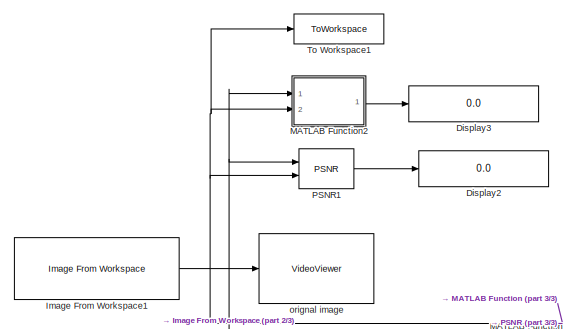
[diagram: root canvas - part 1/3, top left region]
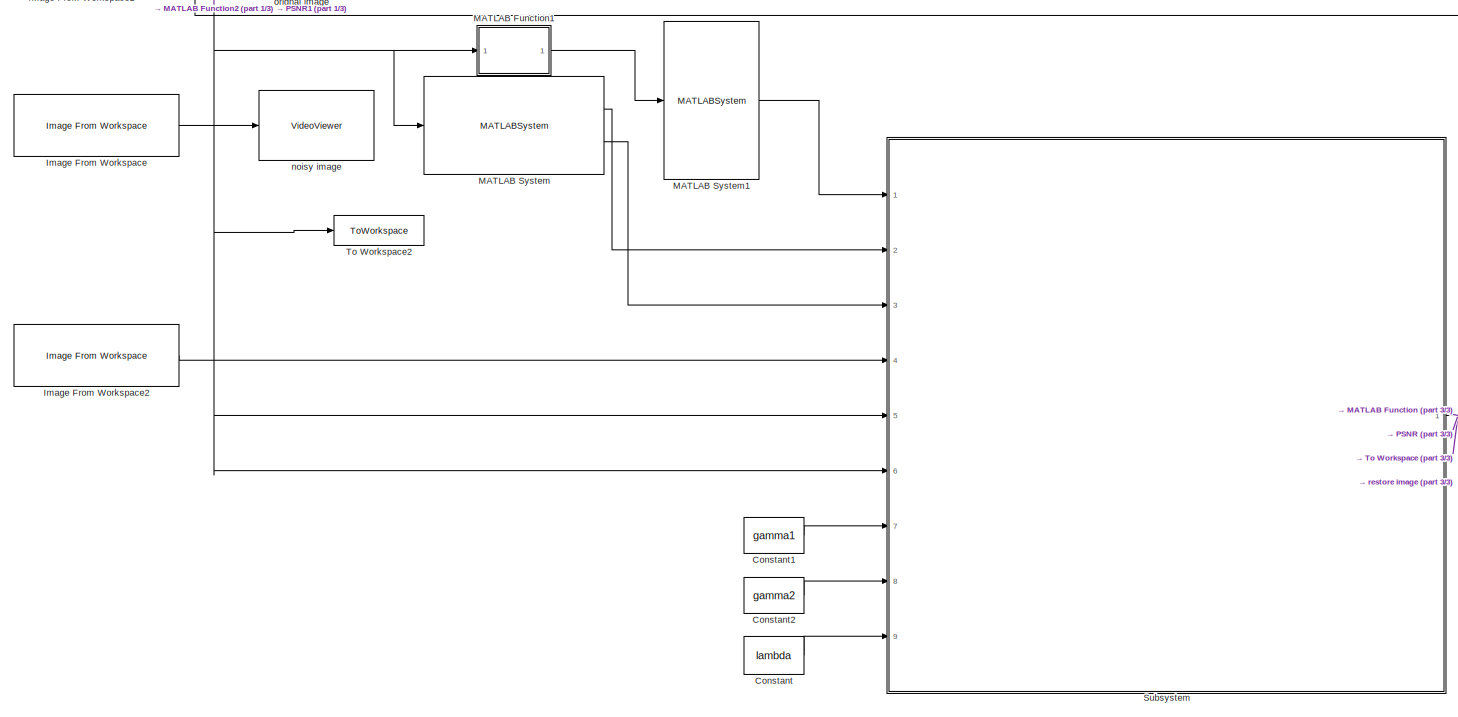
[diagram: root canvas - part 2/3, full width, middle band]
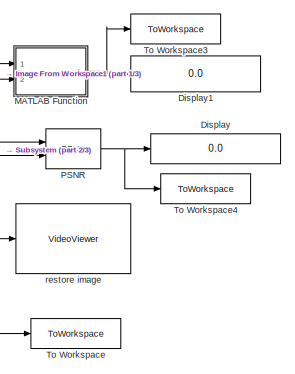
[diagram: root canvas - part 3/3, bottom right region]
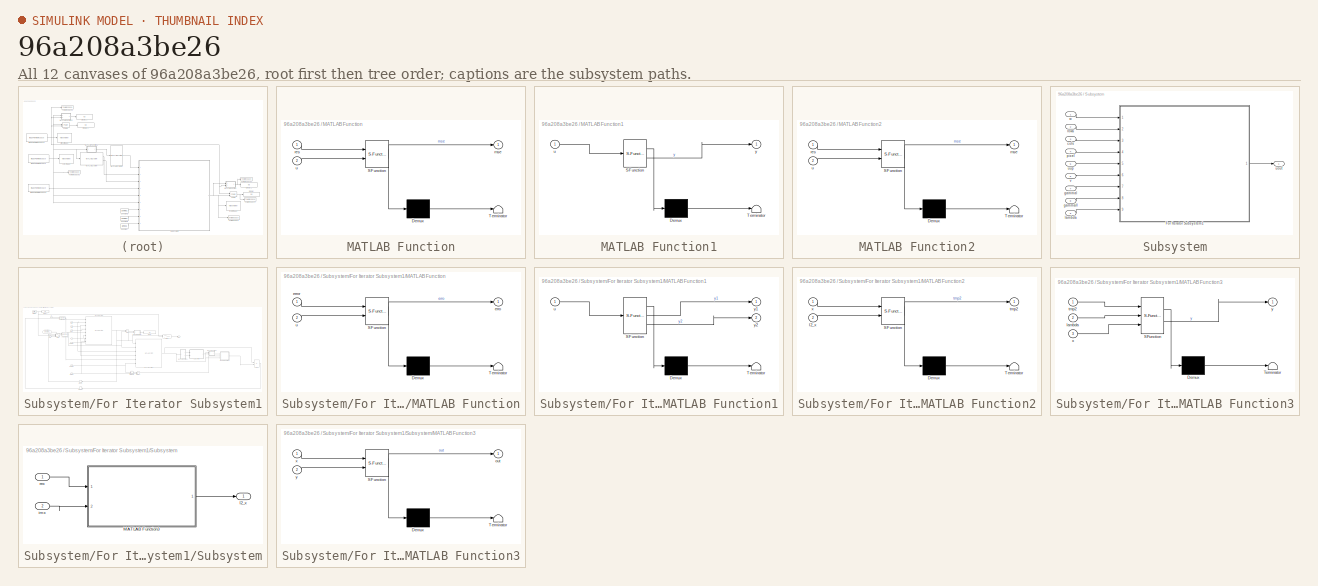
[diagram: thumbnail index - all 12 canvases of the model, root first then tree order]
MODEL slx_96a208a3be26
KIND model
CONFIG AbsTol = auto
CONFIG EnableMultiTasking = off
CONFIG FixedStep = auto
CONFIG MaxStep = auto
CONFIG MinStep = auto
CONFIG RelTol = 1e-3
CONFIG SampleTimeConstraint = Unconstrained
CONFIG SolverName = VariableStepAuto
CONFIG StartTime = 0.0
CONFIG StopTime = 0
BLOCK [Constant] Constant
  Value = lambda
BLOCK [Constant] Constant1
  Value = gamma1
BLOCK [Constant] Constant2
  Value = gamma2
BLOCK [Display] Display
  Decimation = 1
  Format = long
  Ports = [1]
BLOCK [Display] Display1
  Decimation = 1
  Format = long
  Ports = [1]
BLOCK [Display] Display2
  Decimation = 1
  Format = long
  Ports = [1]
BLOCK [Display] Display3
  Decimation = 1
  Format = long
  Ports = [1]
BLOCK [Reference] Image From Workspace  REF=visionsources/Image From Workspace
  Ports = [0, 1]
  SourceBlock = visionsources/Image From Workspace
  SourceProductBaseCode = VP
  SourceType = Image From Workspace
  Tag = vipblks_nd
BLOCK [Reference] Image From Workspace1  REF=visionsources/Image From Workspace
  Ports = [0, 1]
  SourceBlock = visionsources/Image From Workspace
  SourceProductBaseCode = VP
  SourceType = Image From Workspace
  Tag = vipblks_nd
BLOCK [Reference] Image From Workspace2  REF=visionsources/Image From Workspace
  Ports = [0, 1]
  SourceBlock = visionsources/Image From Workspace
  SourceProductBaseCode = VP
  SourceType = Image From Workspace
  Tag = vipblks_nd
BLOCK [SubSystem] MATLAB Function
  ErrorFcn = Stateflow.Translate.translate
  PermitHierarchicalResolution = ExplicitOnly
  Ports = [2, 1]
  RequestExecContextInheritance = off
  SFBlockType = MATLAB Function
  TreatAsAtomicUnit = on
BLOCK [Demux] MATLAB Function/ Demux 
  Outputs = 1
  Ports = [1, 1]
BLOCK [S-Function] MATLAB Function/ SFunction 
  EnableBusSupport = on
  FunctionName = sf_sfun
  PortCounts = [2 2]
  Ports = [2, 2]
  SFcnIsStateOwnerBlock = off
  SFunctionDeploymentMode = off
  Tag = Stateflow S-Function 5
BLOCK [Terminator] MATLAB Function/ Terminator 
BLOCK [Outport] MATLAB Function/mse
BLOCK [Inport] MATLAB Function/res
BLOCK [Inport] MATLAB Function/u
  Port = 2
BLOCK [SubSystem] MATLAB Function1
  ErrorFcn = Stateflow.Translate.translate
  PermitHierarchicalResolution = ExplicitOnly
  Ports = [1, 1]
  RequestExecContextInheritance = off
  SFBlockType = MATLAB Function
  TreatAsAtomicUnit = on
BLOCK [Demux] MATLAB Function1/ Demux 
  Outputs = 1
  Ports = [1, 1]
BLOCK [S-Function] MATLAB Function1/ SFunction 
  EnableBusSupport = on
  FunctionName = sf_sfun
  PortCounts = [1 2]
  Ports = [1, 2]
  SFcnIsStateOwnerBlock = off
  SFunctionDeploymentMode = off
  Tag = Stateflow S-Function 1
BLOCK [Terminator] MATLAB Function1/ Terminator 
BLOCK [Inport] MATLAB Function1/u
BLOCK [Outport] MATLAB Function1/y
BLOCK [SubSystem] MATLAB Function2
  ErrorFcn = Stateflow.Translate.translate
  PermitHierarchicalResolution = ExplicitOnly
  Ports = [2, 1]
  RequestExecContextInheritance = off
  SFBlockType = MATLAB Function
  TreatAsAtomicUnit = on
BLOCK [Demux] MATLAB Function2/ Demux 
  Outputs = 1
  Ports = [1, 1]
BLOCK [S-Function] MATLAB Function2/ SFunction 
  EnableBusSupport = on
  FunctionName = sf_sfun
  PortCounts = [2 2]
  Ports = [2, 2]
  SFcnIsStateOwnerBlock = off
  SFunctionDeploymentMode = off
  Tag = Stateflow S-Function 9
BLOCK [Terminator] MATLAB Function2/ Terminator 
BLOCK [Outport] MATLAB Function2/mse
BLOCK [Inport] MATLAB Function2/res
BLOCK [Inport] MATLAB Function2/u
  Port = 2
BLOCK [MATLABSystem] MATLAB System
  MaskDisplay = disp('regObsevationSystem');\nport_label('input',1,'imnoisy');\nport_label('output',1,'rows');\nport_label('output',2,'colw');
  MaskType = regObsevationSystem
  Ports = [1, 2]
  SimulateUsing = Code generation
  System = regObsevationSystem
BLOCK [MATLABSystem] MATLAB System1
  MaskDisplay = disp('D');\nport_label('input',1,'z');\nport_label('output',1,'w');
  MaskType = dBlockSystem
  Ports = [1, 1]
  SimulateUsing = Code generation
  System = dBlockSystem
BLOCK [Reference] PSNR  REF=visionstatistics/PSNR
  Ports = [2, 1]
  SourceBlock = visionstatistics/PSNR
  SourceProductBaseCode = VP
  SourceType = PSNR
BLOCK [Reference] PSNR1  REF=visionstatistics/PSNR
  Ports = [2, 1]
  SourceBlock = visionstatistics/PSNR
  SourceProductBaseCode = VP
  SourceType = PSNR
BLOCK [SubSystem] Subsystem
  Ports = [9, 1]
  RequestExecContextInheritance = off
  TreatAsAtomicUnit = on
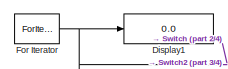
[diagram: Subsystem/For Iterator Subsystem1 - part 1/4, top left region]
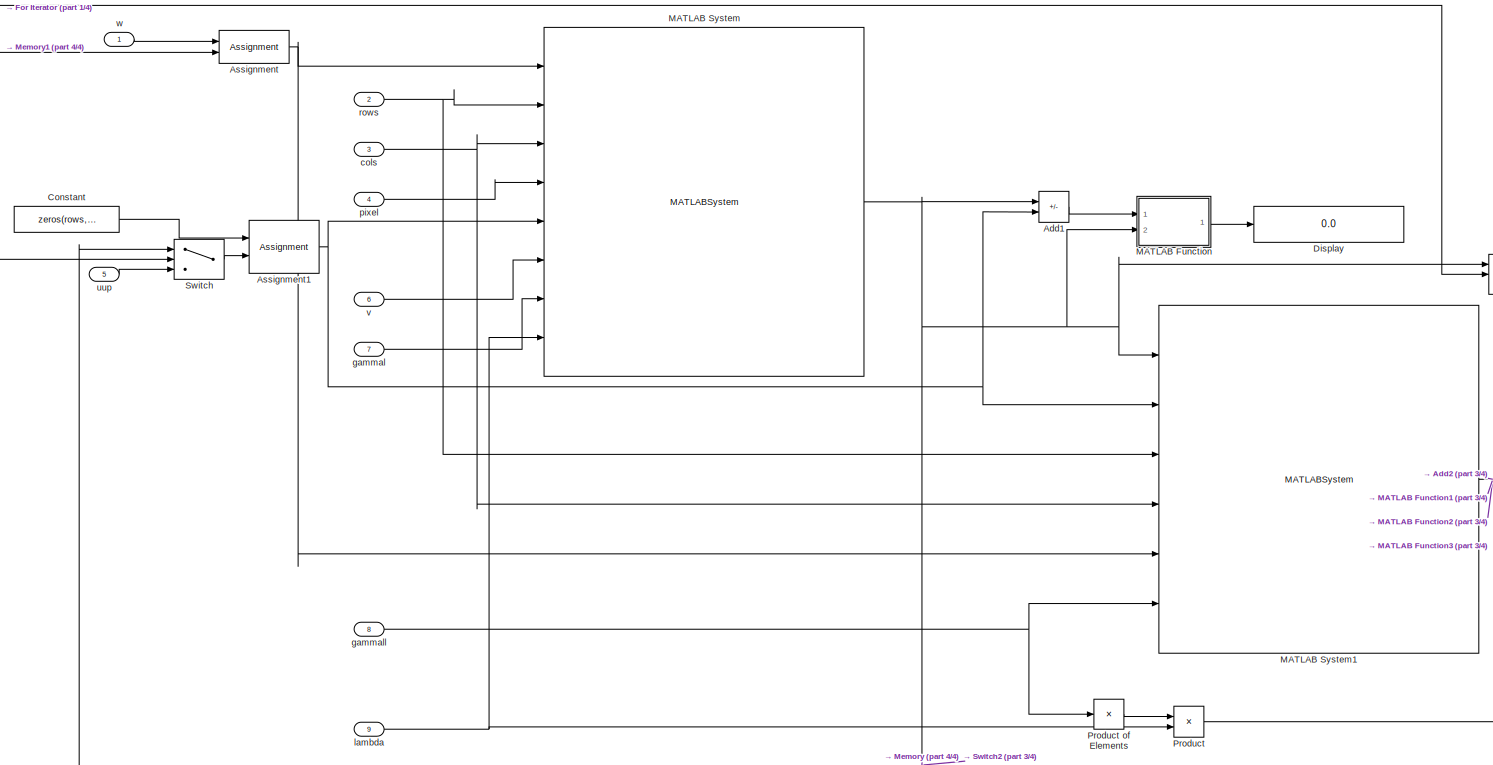
[diagram: Subsystem/For Iterator Subsystem1 - part 2/4, left side, full height]
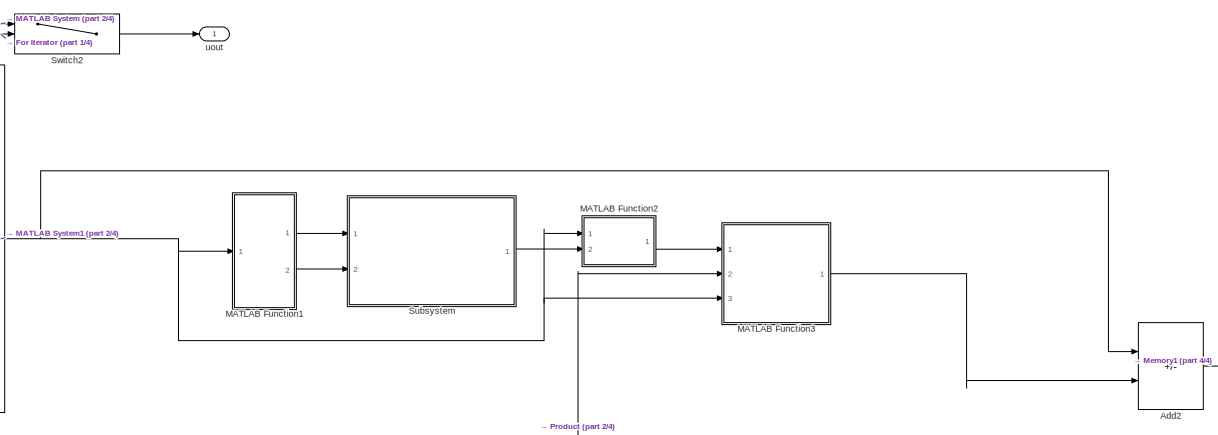
[diagram: Subsystem/For Iterator Subsystem1 - part 3/4, middle right region]
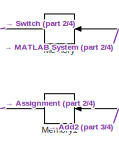
[diagram: Subsystem/For Iterator Subsystem1 - part 4/4, bottom left region]
BLOCK [SubSystem] Subsystem/For Iterator Subsystem1
  Ports = [9, 1]
  RequestExecContextInheritance = off
  TreatAsAtomicUnit = on
BLOCK [Sum] Subsystem/For Iterator Subsystem1/Add1
  IconShape = rectangular
  Inputs = +-
  Ports = [2, 1]
BLOCK [Sum] Subsystem/For Iterator Subsystem1/Add2
  IconShape = rectangular
  Inputs = +-
  Ports = [2, 1]
BLOCK [Assignment] Subsystem/For Iterator Subsystem1/Assignment
  DiagnosticForDimensions = Warning
  IndexOptions = Assign all,Assign all,Assign all
  Indices = 1,1,1
  NumberOfDimensions = 3
  OutputSizes = 1,1,1
  Ports = [2, 1]
BLOCK [Assignment] Subsystem/For Iterator Subsystem1/Assignment1
  DiagnosticForDimensions = Warning
  IndexOptions = Assign all,Assign all
  Indices = 1,1
  NumberOfDimensions = 2
  OutputSizes = 1,1
  Ports = [2, 1]
BLOCK [Constant] Subsystem/For Iterator Subsystem1/Constant
  Value = zeros(rows,cols)
BLOCK [Display] Subsystem/For Iterator Subsystem1/Display
  Decimation = 1
  Ports = [1]
BLOCK [Display] Subsystem/For Iterator Subsystem1/Display1
  Decimation = 1
  Ports = [1]
BLOCK [ForIterator] Subsystem/For Iterator Subsystem1/For Iterator
  IndexMode = Zero-based
  IterationLimit = maxIter
  IterationVariableDataType = double
  Ports = [0, 1]
BLOCK [SubSystem] Subsystem/For Iterator Subsystem1/MATLAB Function
  ErrorFcn = Stateflow.Translate.translate
  PermitHierarchicalResolution = ExplicitOnly
  Ports = [2, 1]
  RequestExecContextInheritance = off
  SFBlockType = MATLAB Function
  TreatAsAtomicUnit = on
BLOCK [Demux] Subsystem/For Iterator Subsystem1/MATLAB Function/ Demux 
  Outputs = 1
  Ports = [1, 1]
BLOCK [S-Function] Subsystem/For Iterator Subsystem1/MATLAB Function/ SFunction 
  EnableBusSupport = on
  FunctionName = sf_sfun
  PortCounts = [2 2]
  Ports = [2, 2]
  SFcnIsStateOwnerBlock = off
  SFunctionDeploymentMode = off
  Tag = Stateflow S-Function 8
BLOCK [Terminator] Subsystem/For Iterator Subsystem1/MATLAB Function/ Terminator 
BLOCK [Outport] Subsystem/For Iterator Subsystem1/MATLAB Function/erro
BLOCK [Inport] Subsystem/For Iterator Subsystem1/MATLAB Function/error
BLOCK [Inport] Subsystem/For Iterator Subsystem1/MATLAB Function/u
  Port = 2
BLOCK [SubSystem] Subsystem/For Iterator Subsystem1/MATLAB Function1
  ErrorFcn = Stateflow.Translate.translate
  PermitHierarchicalResolution = ExplicitOnly
  Ports = [1, 2]
  RequestExecContextInheritance = off
  SFBlockType = MATLAB Function
  TreatAsAtomicUnit = on
BLOCK [Demux] Subsystem/For Iterator Subsystem1/MATLAB Function1/ Demux 
  Outputs = 1
  Ports = [1, 1]
BLOCK [S-Function] Subsystem/For Iterator Subsystem1/MATLAB Function1/ SFunction 
  EnableBusSupport = on
  FunctionName = sf_sfun
  PortCounts = [1 3]
  Ports = [1, 3]
  SFcnIsStateOwnerBlock = off
  SFunctionDeploymentMode = off
  Tag = Stateflow S-Function 10
BLOCK [Terminator] Subsystem/For Iterator Subsystem1/MATLAB Function1/ Terminator 
BLOCK [Inport] Subsystem/For Iterator Subsystem1/MATLAB Function1/u
BLOCK [Outport] Subsystem/For Iterator Subsystem1/MATLAB Function1/y1
BLOCK [Outport] Subsystem/For Iterator Subsystem1/MATLAB Function1/y2
  Port = 2
BLOCK [SubSystem] Subsystem/For Iterator Subsystem1/MATLAB Function2
  ErrorFcn = Stateflow.Translate.translate
  PermitHierarchicalResolution = ExplicitOnly
  Ports = [2, 1]
  RequestExecContextInheritance = off
  SFBlockType = MATLAB Function
  TreatAsAtomicUnit = on
BLOCK [Demux] Subsystem/For Iterator Subsystem1/MATLAB Function2/ Demux 
  Outputs = 1
  Ports = [1, 1]
BLOCK [S-Function] Subsystem/For Iterator Subsystem1/MATLAB Function2/ SFunction 
  EnableBusSupport = on
  FunctionName = sf_sfun
  PortCounts = [2 2]
  Ports = [2, 2]
  SFcnIsStateOwnerBlock = off
  SFunctionDeploymentMode = off
  Tag = Stateflow S-Function 11
BLOCK [Terminator] Subsystem/For Iterator Subsystem1/MATLAB Function2/ Terminator 
BLOCK [Inport] Subsystem/For Iterator Subsystem1/MATLAB Function2/l2_x
  Port = 2
BLOCK [Outport] Subsystem/For Iterator Subsystem1/MATLAB Function2/tmp2
BLOCK [Inport] Subsystem/For Iterator Subsystem1/MATLAB Function2/x
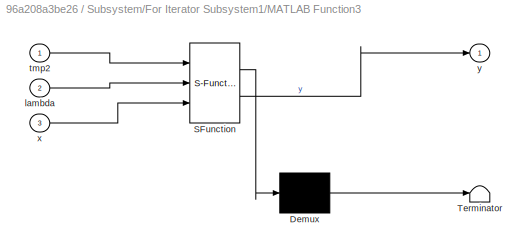
BLOCK [SubSystem] Subsystem/For Iterator Subsystem1/MATLAB Function3
  ErrorFcn = Stateflow.Translate.translate
  PermitHierarchicalResolution = ExplicitOnly
  Ports = [3, 1]
  RequestExecContextInheritance = off
  SFBlockType = MATLAB Function
  TreatAsAtomicUnit = on
BLOCK [Demux] Subsystem/For Iterator Subsystem1/MATLAB Function3/ Demux 
  Outputs = 1
  Ports = [1, 1]
BLOCK [S-Function] Subsystem/For Iterator Subsystem1/MATLAB Function3/ SFunction 
  EnableBusSupport = on
  FunctionName = sf_sfun
  PortCounts = [3 2]
  Ports = [3, 2]
  SFcnIsStateOwnerBlock = off
  SFunctionDeploymentMode = off
  Tag = Stateflow S-Function 12
BLOCK [Terminator] Subsystem/For Iterator Subsystem1/MATLAB Function3/ Terminator 
BLOCK [Inport] Subsystem/For Iterator Subsystem1/MATLAB Function3/lambda
  Port = 2
BLOCK [Inport] Subsystem/For Iterator Subsystem1/MATLAB Function3/tmp2
BLOCK [Inport] Subsystem/For Iterator Subsystem1/MATLAB Function3/x
  Port = 3
BLOCK [Outport] Subsystem/For Iterator Subsystem1/MATLAB Function3/y
BLOCK [MATLABSystem] Subsystem/For Iterator Subsystem1/MATLAB System
  MaskDisplay = disp('updateuSystem');\nport_label('input',1,'w');\nport_label('input',2,'rows');\nport_label('input',3,'cols');\nport_label('input',4,'pixel');\nport_label('input',5,'uup');\nport_label('input',6,'v');\nport_label('input',7,'gamma1');\nport_label('input',8,'lambda');\nport_label('output',1,'u');
  MaskType = updateuSystem
  Ports = [8, 1]
  SimulateUsing = Code generation
  System = updateuSystem
BLOCK [MATLABSystem] Subsystem/For Iterator Subsystem1/MATLAB System1
  MaskDisplay = disp('updatewSystem');\nport_label('input',1,'u');\nport_label('input',2,'upre');\nport_label('input',3,'rows');\nport_label('input',4,'cols');\nport_label('input',5,'w');\nport_label('input',6,'gamma2');\nport_label('output',1,'w_tilde');
  MaskType = updatewSystem
  Ports = [6, 1]
  SimulateUsing = Code generation
  System = updatewSystem
BLOCK [Memory] Subsystem/For Iterator Subsystem1/Memory
  InheritSampleTime = on
BLOCK [Memory] Subsystem/For Iterator Subsystem1/Memory1
  InheritSampleTime = on
BLOCK [Product] Subsystem/For Iterator Subsystem1/Product
  Ports = [2, 1]
BLOCK [Product] Subsystem/For Iterator Subsystem1/Product of Elements
  Inputs = /
  Ports = [1, 1]
BLOCK [SubSystem] Subsystem/For Iterator Subsystem1/Subsystem
  Ports = [2, 1]
  RequestExecContextInheritance = off
BLOCK [SubSystem] Subsystem/For Iterator Subsystem1/Subsystem/MATLAB Function3
  ErrorFcn = Stateflow.Translate.translate
  PermitHierarchicalResolution = ExplicitOnly
  Ports = [2, 1]
  RequestExecContextInheritance = off
  SFBlockType = MATLAB Function
  TreatAsAtomicUnit = on
BLOCK [Demux] Subsystem/For Iterator Subsystem1/Subsystem/MATLAB Function3/ Demux 
  Outputs = 1
  Ports = [1, 1]
BLOCK [S-Function] Subsystem/For Iterator Subsystem1/Subsystem/MATLAB Function3/ SFunction 
  EnableBusSupport = on
  FunctionName = sf_sfun
  PortCounts = [2 2]
  Ports = [2, 2]
  SFcnIsStateOwnerBlock = off
  SFunctionDeploymentMode = off
  Tag = Stateflow S-Function 13
BLOCK [Terminator] Subsystem/For Iterator Subsystem1/Subsystem/MATLAB Function3/ Terminator 
BLOCK [Outport] Subsystem/For Iterator Subsystem1/Subsystem/MATLAB Function3/out
BLOCK [Inport] Subsystem/For Iterator Subsystem1/Subsystem/MATLAB Function3/x
BLOCK [Inport] Subsystem/For Iterator Subsystem1/Subsystem/MATLAB Function3/y
  Port = 2
BLOCK [Inport] Subsystem/For Iterator Subsystem1/Subsystem/imx
  Port = 2
BLOCK [Outport] Subsystem/For Iterator Subsystem1/Subsystem/l2_x
BLOCK [Inport] Subsystem/For Iterator Subsystem1/Subsystem/rex
BLOCK [Switch] Subsystem/For Iterator Subsystem1/Switch
  Criteria = u2 > Threshold
  InputSameDT = off
  SaturateOnIntegerOverflow = off
BLOCK [Switch] Subsystem/For Iterator Subsystem1/Switch2
  InputSameDT = off
  SaturateOnIntegerOverflow = off
  Threshold = maxIter-1
BLOCK [Inport] Subsystem/For Iterator Subsystem1/cols
  Port = 3
BLOCK [Inport] Subsystem/For Iterator Subsystem1/gammal
  Port = 7
BLOCK [Inport] Subsystem/For Iterator Subsystem1/gammall
  Port = 8
BLOCK [Inport] Subsystem/For Iterator Subsystem1/lambda
  Port = 9
BLOCK [Inport] Subsystem/For Iterator Subsystem1/pixel
  Port = 4
BLOCK [Inport] Subsystem/For Iterator Subsystem1/rows
  Port = 2
BLOCK [Outport] Subsystem/For Iterator Subsystem1/uout
BLOCK [Inport] Subsystem/For Iterator Subsystem1/uup
  Port = 5
BLOCK [Inport] Subsystem/For Iterator Subsystem1/v
  Port = 6
BLOCK [Inport] Subsystem/For Iterator Subsystem1/w
BLOCK [Inport] Subsystem/cols
  Port = 3
BLOCK [Inport] Subsystem/gammal
  Port = 7
BLOCK [Inport] Subsystem/gammall
  Port = 8
BLOCK [Inport] Subsystem/lambda
  Port = 9
BLOCK [Inport] Subsystem/pixel
  Port = 4
BLOCK [Inport] Subsystem/rows
  Port = 2
BLOCK [Outport] Subsystem/uout
BLOCK [Inport] Subsystem/uup
  Port = 5
BLOCK [Inport] Subsystem/v
  Port = 6
BLOCK [Inport] Subsystem/w
BLOCK [ToWorkspace] To Workspace
  FixptAsFi = on
  MaxDataPoints = inf
  Ports = [1]
  SampleTime = -1
  Save2DSignal = 2-D array (concatenate along first dimension)
  SaveFormat = Structure
  VariableName = tv_restored_sq
BLOCK [ToWorkspace] To Workspace1
  FixptAsFi = on
  MaxDataPoints = inf
  Ports = [1]
  SampleTime = -1
  Save2DSignal = 2-D array (concatenate along first dimension)
  SaveFormat = Structure
  VariableName = orgImg
BLOCK [ToWorkspace] To Workspace2
  FixptAsFi = on
  MaxDataPoints = inf
  Ports = [1]
  SampleTime = -1
  Save2DSignal = 2-D array (concatenate along first dimension)
  SaveFormat = Structure
  VariableName = noisy
BLOCK [ToWorkspace] To Workspace3
  FixptAsFi = on
  MaxDataPoints = inf
  Ports = [1]
  SampleTime = -1
  Save2DSignal = 2-D array (concatenate along first dimension)
  SaveFormat = Structure
  VariableName = mse
BLOCK [ToWorkspace] To Workspace4
  FixptAsFi = on
  MaxDataPoints = inf
  Ports = [1]
  SampleTime = -1
  Save2DSignal = 2-D array (concatenate along first dimension)
  SaveFormat = Structure
  VariableName = PSNR
BLOCK [VideoViewer] noisy image
  Commented = on
  FigPos = [349 887 308 381]
  Ports = [1]
  ScopeSpecificationString = vipscopes.VideoViewerScopeCfg('CurrentConfiguration', extmgr.ConfigurationSet(extmgr.Configuration('Core','General UI',true),extmgr.Configuration('Core','Source UI',true),extmgr.Configuration('Sources','WiredSimulink',true),extmgr.Configuration('Visuals','Video',true),extmgr.Configuration('Tools','Image Navigation Tools',true),extmgr.Configuration('Tools','Image Tool',true),extmgr.Configuration('T...<+101ch>
BLOCK [VideoViewer] orignal image
  Commented = on
  FigPos = [248 697 520 310]
  Ports = [1]
  ScopeSpecificationString = vipscopes.VideoViewerScopeCfg('CurrentConfiguration', extmgr.ConfigurationSet(extmgr.Configuration('Core','General UI',true),extmgr.Configuration('Core','Source UI',true),extmgr.Configuration('Sources','WiredSimulink',true),extmgr.Configuration('Visuals','Video',true),extmgr.Configuration('Tools','Image Navigation Tools',true),extmgr.Configuration('Tools','Image Tool',true),extmgr.Configuration('T...<+101ch>
BLOCK [VideoViewer] restore image
  Commented = on
  FigPos = [19 892 539 328]
  Ports = [1]
  ScopeSpecificationString = vipscopes.VideoViewerScopeCfg('CurrentConfiguration', extmgr.ConfigurationSet(extmgr.Configuration('Core','General UI',true),extmgr.Configuration('Core','Source UI',true),extmgr.Configuration('Sources','WiredSimulink',true),extmgr.Configuration('Visuals','Video',true),extmgr.Configuration('Tools','Image Navigation Tools',true),extmgr.Configuration('Tools','Image Tool',true),extmgr.Configuration('T...<+100ch>
LINE Constant1:1 -> Subsystem:7
LINE Constant2:1 -> Subsystem:8
LINE Constant:1 -> Subsystem:9
NET Image From Workspace1:1 -> MATLAB Function2:2, MATLAB Function:2, PSNR1:2, PSNR:1, To Workspace1:1, orignal image:1
LINE Image From Workspace2:1 -> Subsystem:4
NET Image From Workspace:1 -> MATLAB Function1:1, MATLAB Function2:1, MATLAB System:1, PSNR1:1, Subsystem:5, Subsystem:6, To Workspace2:1, noisy image:1
LINE MATLAB Function1:1 -> MATLAB System1:1
LINE MATLAB Function2:1 -> Display3:1
NET MATLAB Function:1 -> Display1:1, To Workspace3:1
LINE MATLAB System1:1 -> Subsystem:1
LINE MATLAB System:1 -> Subsystem:2
LINE MATLAB System:2 -> Subsystem:3
LINE PSNR1:1 -> Display2:1
NET PSNR:1 -> Display:1, To Workspace4:1
LINE Subsystem/For Iterator Subsystem1/Add1:1 -> Subsystem/For Iterator Subsystem1/MATLAB Function:1
LINE Subsystem/For Iterator Subsystem1/Add2:1 -> Subsystem/For Iterator Subsystem1/Memory1:1
NET Subsystem/For Iterator Subsystem1/Assignment1:1 -> Subsystem/For Iterator Subsystem1/Add1:2, Subsystem/For Iterator Subsystem1/MATLAB System1:2, Subsystem/For Iterator Subsystem1/MATLAB System:5
NET Subsystem/For Iterator Subsystem1/Assignment:1 -> Subsystem/For Iterator Subsystem1/MATLAB System1:5, Subsystem/For Iterator Subsystem1/MATLAB System:1
LINE Subsystem/For Iterator Subsystem1/Constant:1 -> Subsystem/For Iterator Subsystem1/Assignment1:1
NET Subsystem/For Iterator Subsystem1/For Iterator:1 -> Subsystem/For Iterator Subsystem1/Display1:1, Subsystem/For Iterator Subsystem1/Switch2:2, Subsystem/For Iterator Subsystem1/Switch:2
LINE Subsystem/For Iterator Subsystem1/MATLAB Function1:1 -> Subsystem/For Iterator Subsystem1/Subsystem:1
LINE Subsystem/For Iterator Subsystem1/MATLAB Function1:2 -> Subsystem/For Iterator Subsystem1/Subsystem:2
LINE Subsystem/For Iterator Subsystem1/MATLAB Function2:1 -> Subsystem/For Iterator Subsystem1/MATLAB Function3:1
LINE Subsystem/For Iterator Subsystem1/MATLAB Function3:1 -> Subsystem/For Iterator Subsystem1/Add2:2
LINE Subsystem/For Iterator Subsystem1/MATLAB Function:1 -> Subsystem/For Iterator Subsystem1/Display:1
NET Subsystem/For Iterator Subsystem1/MATLAB System1:1 -> Subsystem/For Iterator Subsystem1/Add2:1, Subsystem/For Iterator Subsystem1/MATLAB Function1:1, Subsystem/For Iterator Subsystem1/MATLAB Function2:1, Subsystem/For Iterator Subsystem1/MATLAB Function3:3
NET Subsystem/For Iterator Subsystem1/MATLAB System:1 -> Subsystem/For Iterator Subsystem1/Add1:1, Subsystem/For Iterator Subsystem1/MATLAB Function:2, Subsystem/For Iterator Subsystem1/MATLAB System1:1, Subsystem/For Iterator Subsystem1/Memory:1, Subsystem/For Iterator Subsystem1/Switch2:1
LINE Subsystem/For Iterator Subsystem1/Memory1:1 -> Subsystem/For Iterator Subsystem1/Assignment:2
LINE Subsystem/For Iterator Subsystem1/Memory:1 -> Subsystem/For Iterator Subsystem1/Switch:1
LINE Subsystem/For Iterator Subsystem1/Product of Elements:1 -> Subsystem/For Iterator Subsystem1/Product:1
LINE Subsystem/For Iterator Subsystem1/Product:1 -> Subsystem/For Iterator Subsystem1/MATLAB Function3:2
LINE Subsystem/For Iterator Subsystem1/Subsystem/MATLAB Function3:1 -> Subsystem/For Iterator Subsystem1/Subsystem/l2_x:1
LINE Subsystem/For Iterator Subsystem1/Subsystem/imx:1 -> Subsystem/For Iterator Subsystem1/Subsystem/MATLAB Function3:2
LINE Subsystem/For Iterator Subsystem1/Subsystem/rex:1 -> Subsystem/For Iterator Subsystem1/Subsystem/MATLAB Function3:1
LINE Subsystem/For Iterator Subsystem1/Subsystem:1 -> Subsystem/For Iterator Subsystem1/MATLAB Function2:2
LINE Subsystem/For Iterator Subsystem1/Switch2:1 -> Subsystem/For Iterator Subsystem1/uout:1
LINE Subsystem/For Iterator Subsystem1/Switch:1 -> Subsystem/For Iterator Subsystem1/Assignment1:2
NET Subsystem/For Iterator Subsystem1/cols:1 -> Subsystem/For Iterator Subsystem1/MATLAB System1:4, Subsystem/For Iterator Subsystem1/MATLAB System:3
LINE Subsystem/For Iterator Subsystem1/gammal:1 -> Subsystem/For Iterator Subsystem1/MATLAB System:7
NET Subsystem/For Iterator Subsystem1/gammall:1 -> Subsystem/For Iterator Subsystem1/MATLAB System1:6, Subsystem/For Iterator Subsystem1/Product of Elements:1
NET Subsystem/For Iterator Subsystem1/lambda:1 -> Subsystem/For Iterator Subsystem1/MATLAB System:8, Subsystem/For Iterator Subsystem1/Product:2
LINE Subsystem/For Iterator Subsystem1/pixel:1 -> Subsystem/For Iterator Subsystem1/MATLAB System:4
NET Subsystem/For Iterator Subsystem1/rows:1 -> Subsystem/For Iterator Subsystem1/MATLAB System1:3, Subsystem/For Iterator Subsystem1/MATLAB System:2
LINE Subsystem/For Iterator Subsystem1/uup:1 -> Subsystem/For Iterator Subsystem1/Switch:3
LINE Subsystem/For Iterator Subsystem1/v:1 -> Subsystem/For Iterator Subsystem1/MATLAB System:6
LINE Subsystem/For Iterator Subsystem1/w:1 -> Subsystem/For Iterator Subsystem1/Assignment:1
LINE Subsystem/For Iterator Subsystem1:1 -> Subsystem/uout:1
LINE Subsystem/cols:1 -> Subsystem/For Iterator Subsystem1:3
LINE Subsystem/gammal:1 -> Subsystem/For Iterator Subsystem1:7
LINE Subsystem/gammall:1 -> Subsystem/For Iterator Subsystem1:8
LINE Subsystem/lambda:1 -> Subsystem/For Iterator Subsystem1:9
LINE Subsystem/pixel:1 -> Subsystem/For Iterator Subsystem1:4
LINE Subsystem/rows:1 -> Subsystem/For Iterator Subsystem1:2
LINE Subsystem/uup:1 -> Subsystem/For Iterator Subsystem1:5
LINE Subsystem/v:1 -> Subsystem/For Iterator Subsystem1:6
LINE Subsystem/w:1 -> Subsystem/For Iterator Subsystem1:1
NET Subsystem:1 -> MATLAB Function:1, PSNR:2, To Workspace:1, restore image:1
note: NET lines group one-source signal fan-out (src -> all destinations, sorted); 1:1 wires keep LINE
CHART MATLAB Function states=1 transitions=1
  STATE_LABEL 'eML_blk_kernel()'
  STATE_LABEL 'SCRIPT:\nfunction mse = fcn(res,u)\n\nmse = immse(u,res);\n'
CHART Subsystem/For Iterator
Subsystem1/MATLAB Function states=1 transitions=1
  STATE_LABEL 'eML_blk_kernel()'
  STATE_LABEL 'SCRIPT:\nfunction erro = fcn(error,u)\n\nerro = norm(error(:),2) / norm(u(:),2);\n'
CHART MATLAB Function2 states=1 transitions=1
  STATE_LABEL 'eML_blk_kernel()'
  STATE_LABEL 'SCRIPT:\nfunction mse = fcn(res,u)\n\nmse = immse(u,res);\n'
CHART Subsystem/For Iterator
Subsystem1/MATLAB Function1 states=1 transitions=1
  STATE_LABEL 'eML_blk_kernel()'
  STATE_LABEL 'SCRIPT:\nfunction [y1,y2] = fcn(u)\n    y1 = u(:,:,1);\n    y2 = u(:,:,2);\nend'
CHART Subsystem/For Iterator
Subsystem1/MATLAB Function2 states=1 transitions=1
  STATE_LABEL 'eML_blk_kernel()'
  STATE_LABEL 'SCRIPT:\nfunction tmp2 = fcn(x,l2_x)\n\nif isfi(x) == true\n    tmp2 = divide(x.numerictype,1,l2_x);\nelse\n    tmp2 = 1./l2_x;\nend\n'
CHART Subsystem/For Iterator
Subsystem1/MATLAB Function3 states=1 transitions=1
  STATE_LABEL 'eML_blk_kernel()'
  STATE_LABEL 'SCRIPT:\nfunction y = fcn(tmp2,lambda,x)\n\n% tmp3 = lambda*tmp2;\ny = repmat(max(1 - tmp2,0),1,1,2) .* x;\n\n'
CHART Subsystem/For Iterator
Subsystem1/Subsystem/MATLAB Function3 states=1 transitions=1
  STATE_LABEL 'eML_blk_kernel()'
  STATE_LABEL "SCRIPT:\nfunction out = l2_cordic(x,y)\n\ntmp1 = x.^2 + y.^2;\ntmp1 = cast(tmp1,'like',x);\nout = cordicsqrt(tmp1);\n\nend"
CHART MATLAB Function1 states=1 transitions=1
  STATE_LABEL 'eML_blk_kernel()'
  STATE_LABEL 'SCRIPT:\nfunction y = fcn(u)\n\ny = zeros(size(u));\n'
CHART  states=0 transitions=0
CHART  states=0 transitions=0
CHART  states=0 transitions=0
CHART  states=0 transitions=0
CHART  states=0 transitions=0
CHART  states=0 transitions=0
CHART  states=0 transitions=0
CHART  states=0 transitions=0
